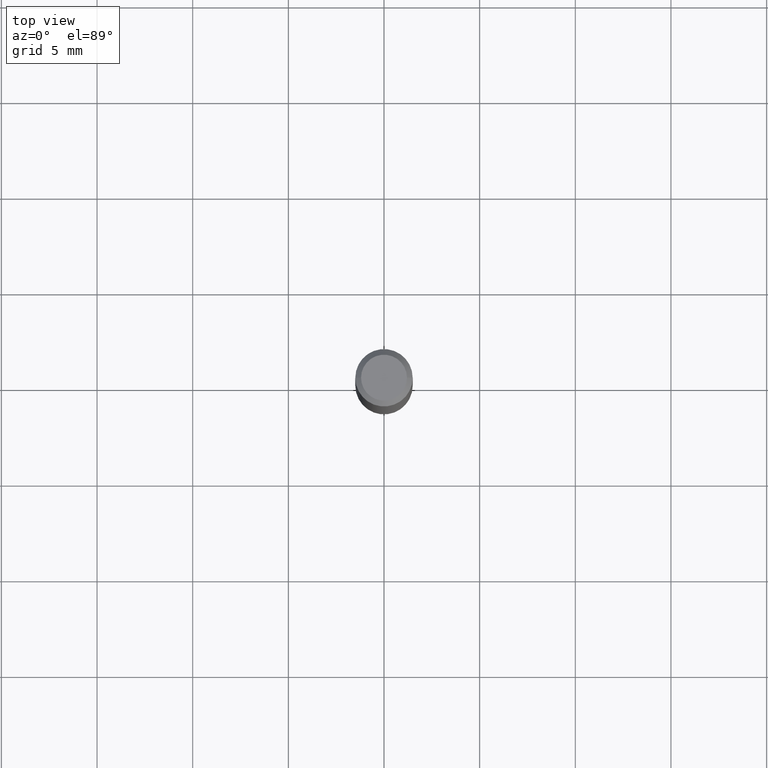
[diagram: clean part render]
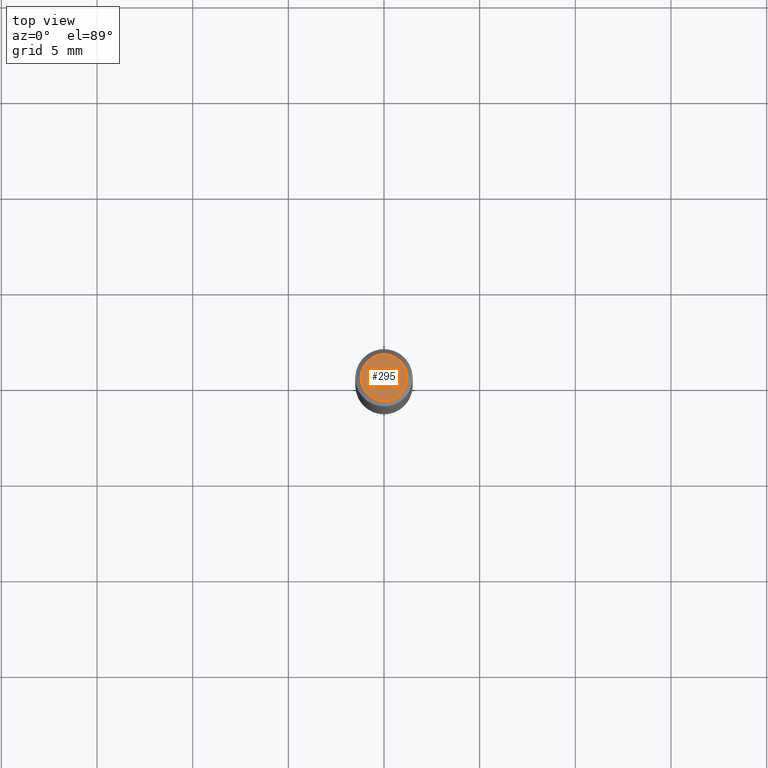
[diagram: same view with one face highlighted and labeled with its STEP entity id]
A machine part, top view. The second image highlights one B-rep face of the part: STEP entity #295.
In plain terms, the highlighted planar face has unit normal (0, -0, -1).
Its self-contained STEP definition (entity closure, byte-faithful):
#5 = AXIS2_PLACEMENT_3D ( 'NONE', #93, #465, #201 ) ;
#19 = FACE_OUTER_BOUND ( 'NONE', #125, .T. ) ;
#23 = CARTESIAN_POINT ( 'NONE',  ( 4.132873053354867254E-48, -5.900647395337818946E-34, -1.690012582823346072E-19 ) ) ;
#33 = AXIS2_PLACEMENT_3D ( 'NONE', #105, #417, #369 ) ;
#36 = CARTESIAN_POINT ( 'NONE',  ( 0.04724000000000000421, -3.852183633974369838E-16, -3.380025165621689721E-19 ) ) ;
#61 = ORIENTED_EDGE ( 'NONE', *, *, #409, .T. ) ;
#93 = CARTESIAN_POINT ( 'NONE',  ( 8.265746106709734507E-48, -1.180129479067563789E-33, -3.380025165646692144E-19 ) ) ;
#96 = CIRCLE ( 'NONE', #33, 0.04724000000000000421 ) ;
#105 = CARTESIAN_POINT ( 'NONE',  ( 8.265746106709734507E-48, -1.180129479067563789E-33, -3.380025165646692144E-19 ) ) ;
#125 = EDGE_LOOP ( 'NONE', ( #221, #61 ) ) ;
#127 = DIRECTION ( 'NONE',  ( -1.000000000000000000, 6.982962677686265922E-15, -4.876176775795935793E-29 ) ) ;
#180 = CIRCLE ( 'NONE', #5, 0.04724000000000000421 ) ;
#201 = DIRECTION ( 'NONE',  ( 1.000000000000000000, -6.982962677686266711E-15, 4.876185090822587894E-29 ) ) ;
#209 = PLANE ( 'NONE',  #455 ) ;
#221 = ORIENTED_EDGE ( 'NONE', *, *, #330, .T. ) ;
#243 = CARTESIAN_POINT ( 'NONE',  ( -0.04724000000000000421, 3.504923541997677355E-16, -3.380025165670481712E-19 ) ) ;
#295 = ADVANCED_FACE ( 'NONE', ( #19 ), #209, .F. ) ;
#303 = VERTEX_POINT ( 'NONE', #243 ) ;
#321 = DIRECTION ( 'NONE',  ( 2.438088387897960049E-29, -3.491481338843145188E-15, -1.000000000000000000 ) ) ;
#330 = EDGE_CURVE ( 'NONE', #303, #456, #180, .T. ) ;
#369 = DIRECTION ( 'NONE',  ( 1.000000000000000000, -6.982962677686266711E-15, 4.876185090822587894E-29 ) ) ;
#409 = EDGE_CURVE ( 'NONE', #456, #303, #96, .T. ) ;
#417 = DIRECTION ( 'NONE',  ( -2.445468806185136597E-29, 3.491481338843145583E-15, 1.000000000000000000 ) ) ;
#455 = AXIS2_PLACEMENT_3D ( 'NONE', #23, #321, #127 ) ;
#456 = VERTEX_POINT ( 'NONE', #36 ) ;
#465 = DIRECTION ( 'NONE',  ( -2.445468806185136597E-29, 3.491481338843145583E-15, 1.000000000000000000 ) ) ;